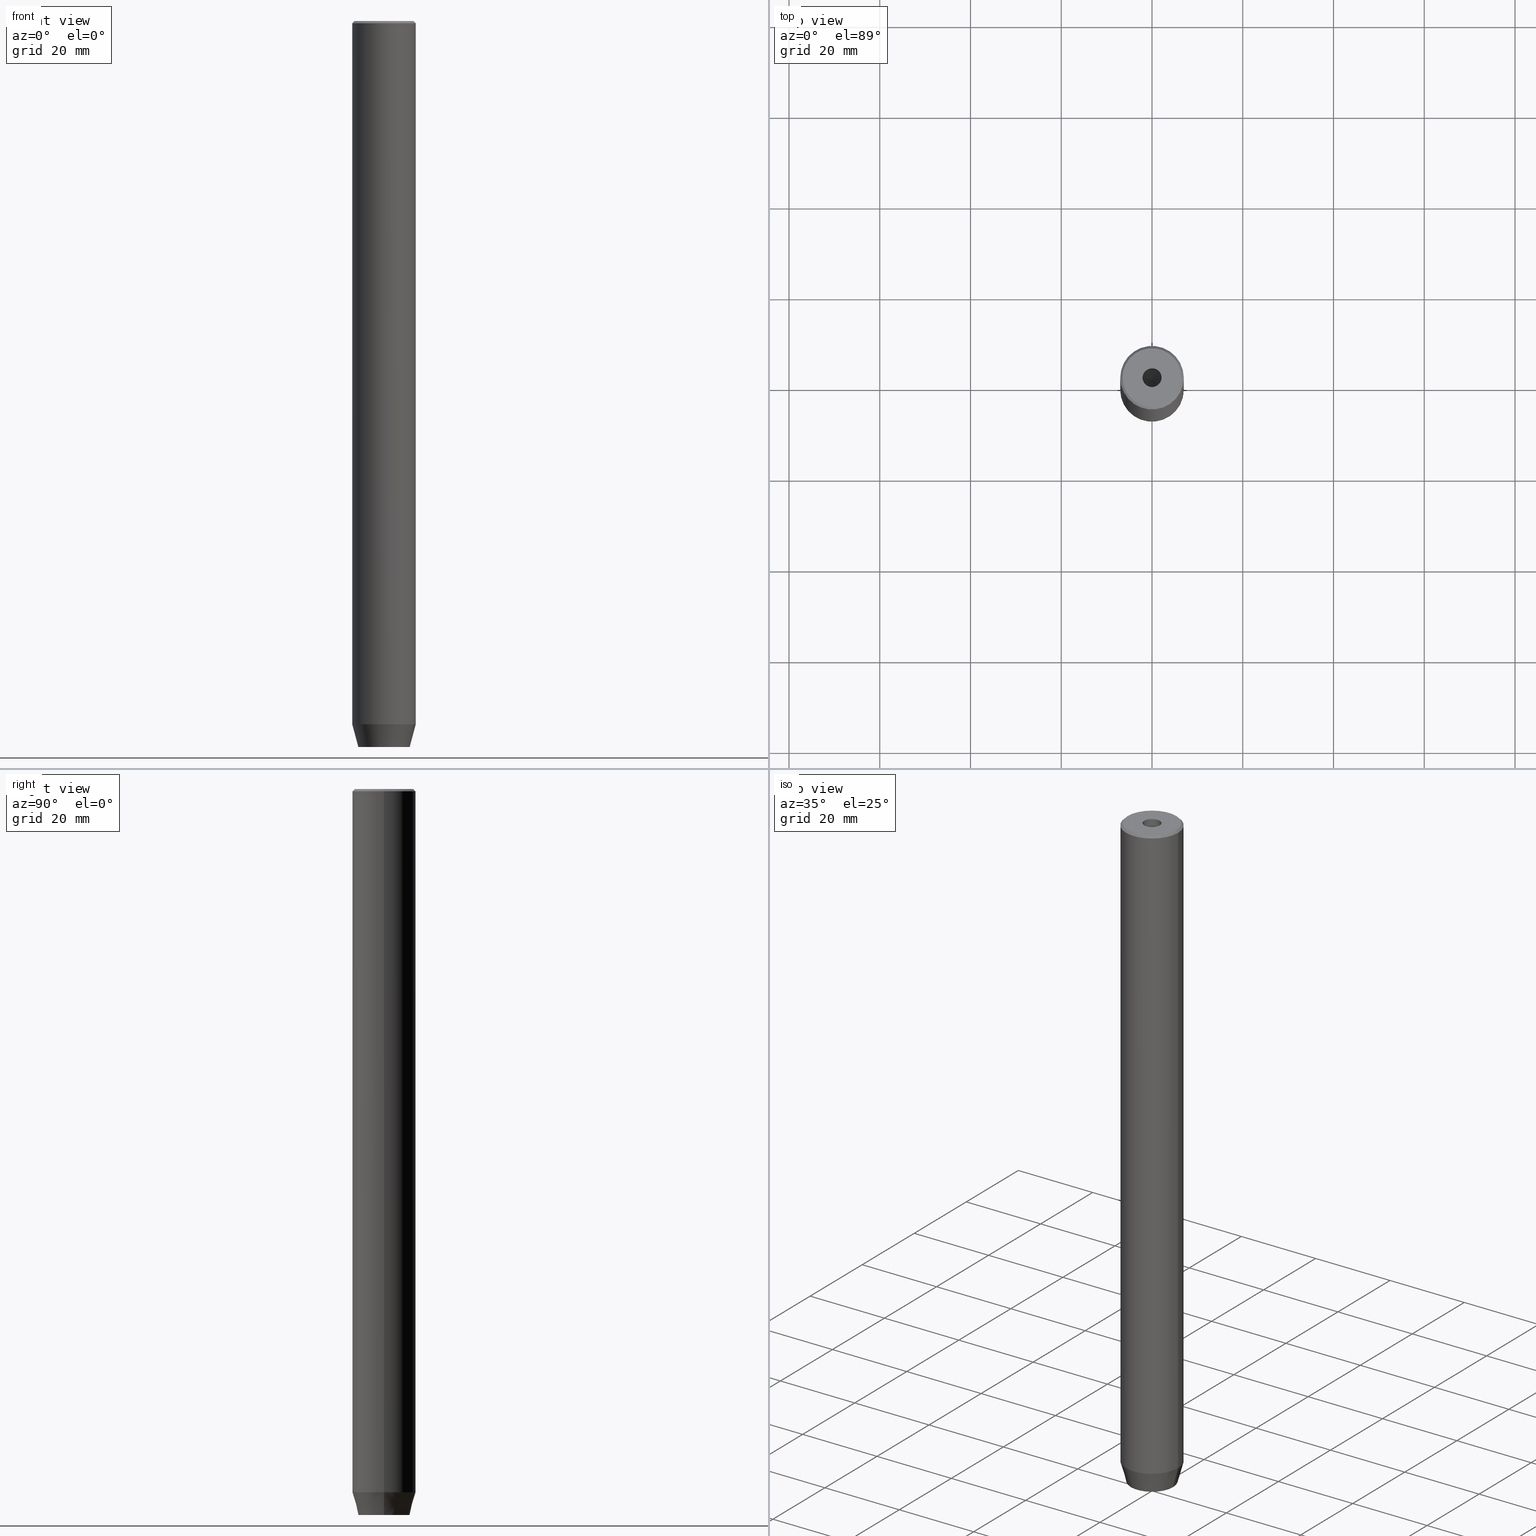
[diagram: canonical four-view strip — front | top / right | iso, engineering-drawing reading convention]
A machine part, canonical four-view strip (front | top / right | iso — engineering-drawing reading convention). The complete STEP part file that produces these views, byte-faithful:
ISO-10303-21;
HEADER;
FILE_DESCRIPTION (( 'STEP AP203' ),
    '1' );
FILE_NAME ('626a.STEP',
    '2024-01-02T20:41:17',
    ( '' ),
    ( '' ),
    'SwSTEP 2.0',
    'SolidWorks 2019',
    '' );
FILE_SCHEMA (( 'CONFIG_CONTROL_DESIGN' ));
ENDSEC;

DATA;
#1 = ADVANCED_FACE ( 'NONE', ( #154 ), #517, .F. ) ;
#2 = LINE ( 'NONE', #453, #165 ) ;
#3 = PERSON_AND_ORGANIZATION ( #474, #167 ) ;
#4 = VERTEX_POINT ( 'NONE', #475 ) ;
#5 = LINE ( 'NONE', #43, #86 ) ;
#6 = CLOSED_SHELL ( 'NONE', ( #383, #38, #160, #395, #504, #122, #405, #551, #339, #511, #423, #528, #535, #1, #142, #227, #458, #150, #30 ) ) ;
#7 = CIRCLE ( 'NONE', #49, 2.099999999999998757 ) ;
#8 = SECURITY_CLASSIFICATION_LEVEL ( 'unclassified' ) ;
#9 = ORIENTED_EDGE ( 'NONE', *, *, #446, .T. ) ;
#10 = DIRECTION ( 'NONE',  ( 1.000000000000000000, 0.000000000000000000, 0.000000000000000000 ) ) ;
#11 = LINE ( 'NONE', #149, #41 ) ;
#12 = LINE ( 'NONE', #291, #70 ) ;
#13 = COORDINATED_UNIVERSAL_TIME_OFFSET ( 1, 0, .AHEAD. ) ;
#14 = ORIENTED_EDGE ( 'NONE', *, *, #542, .T. ) ;
#15 = DIRECTION ( 'NONE',  ( -0.8660254037844387076, 0.4999999999999998890, 0.000000000000000000 ) ) ;
#16 = CARTESIAN_POINT ( 'NONE',  ( -2.099999999999997868, 2.571758278209438999E-16, 0.000000000000000000 ) ) ;
#17 = LOCAL_TIME ( 21, 41, 17.00000000000000000, #564 ) ;
#18 = FACE_OUTER_BOUND ( 'NONE', #515, .T. ) ;
#19 = DATE_AND_TIME ( #327, #342 ) ;
#20 = VERTEX_POINT ( 'NONE', #64 ) ;
#21 = ORIENTED_EDGE ( 'NONE', *, *, #129, .F. ) ;
#22 = LINE ( 'NONE', #382, #452 ) ;
#23 = EDGE_CURVE ( 'NONE', #570, #4, #261, .T. ) ;
#24 = EDGE_LOOP ( 'NONE', ( #155, #369, #341, #75 ) ) ;
#25 = LINE ( 'NONE', #419, #346 ) ;
#26 = CARTESIAN_POINT ( 'NONE',  ( 2.500000000000000000, 0.000000000000000000, -160.0000000000000000 ) ) ;
#27 = CARTESIAN_POINT ( 'NONE',  ( 1.249999999999999778, -2.165063509461096380, -157.2000000000000171 ) ) ;
#28 = AXIS2_PLACEMENT_3D ( 'NONE', #362, #89, #233 ) ;
#29 = CIRCLE ( 'NONE', #176, 7.000000000000000000 ) ;
#30 = ADVANCED_FACE ( 'NONE', ( #217 ), #350, .F. ) ;
#31 = VERTEX_POINT ( 'NONE', #437 ) ;
#32 = CARTESIAN_POINT ( 'NONE',  ( 0.000000000000000000, -2.886751345948128211, -157.2000000000000171 ) ) ;
#33 = CARTESIAN_POINT ( 'NONE',  ( 7.000000000000000000, 0.000000000000000000, 0.000000000000000000 ) ) ;
#34 = DIRECTION ( 'NONE',  ( 1.000000000000000000, 0.000000000000000000, 0.000000000000000000 ) ) ;
#35 = CIRCLE ( 'NONE', #546, 5.660254037844375752 ) ;
#36 = AXIS2_PLACEMENT_3D ( 'NONE', #407, #586, #185 ) ;
#37 = DIRECTION ( 'NONE',  ( -0.000000000000000000, -0.000000000000000000, 1.000000000000000000 ) ) ;
#38 = ADVANCED_FACE ( 'NONE', ( #260 ), #40, .F. ) ;
#39 = ORIENTED_EDGE ( 'NONE', *, *, #106, .T. ) ;
#40 = CONICAL_SURFACE ( 'NONE', #279, 2.099999999999996980, 1.029744258676652535 ) ;
#41 = VECTOR ( 'NONE', #282, 1000.000000000000000 ) ;
#42 = EDGE_CURVE ( 'NONE', #31, #258, #127, .T. ) ;
#43 = CARTESIAN_POINT ( 'NONE',  ( 2.500000000000000000, 1.443375672974064328, -157.2000000000000171 ) ) ;
#44 = DATE_AND_TIME ( #553, #287 ) ;
#45 = PERSON_AND_ORGANIZATION_ROLE ( 'design_supplier' ) ;
#46 = LINE ( 'NONE', #489, #318 ) ;
#47 = AXIS2_PLACEMENT_3D ( 'NONE', #394, #37, #353 ) ;
#48 = DIRECTION ( 'NONE',  ( -0.000000000000000000, -0.000000000000000000, 1.000000000000000000 ) ) ;
#49 = AXIS2_PLACEMENT_3D ( 'NONE', #582, #459, #10 ) ;
#50 = PERSON_AND_ORGANIZATION ( #474, #167 ) ;
#51 = EDGE_LOOP ( 'NONE', ( #364, #239, #65, #169 ) ) ;
#52 = DIRECTION ( 'NONE',  ( 1.000000000000000000, 0.000000000000000000, 0.000000000000000000 ) ) ;
#53 = EDGE_CURVE ( 'NONE', #256, #570, #224, .T. ) ;
#54 = PERSON_AND_ORGANIZATION_ROLE ( 'design_owner' ) ;
#55 = DIRECTION ( 'NONE',  ( 0.8660254037844385966, 0.5000000000000001110, 0.000000000000000000 ) ) ;
#56 = CARTESIAN_POINT ( 'NONE',  ( -1.084202172485504434E-16, 2.886751345948129543, -157.2000000000000171 ) ) ;
#57 = APPLICATION_CONTEXT ( 'configuration controlled 3d designs of mechanical parts and assemblies' ) ;
#58 = DIRECTION ( 'NONE',  ( -0.000000000000000000, -0.000000000000000000, 1.000000000000000000 ) ) ;
#59 = ORIENTED_EDGE ( 'NONE', *, *, #199, .F. ) ;
#60 = ORIENTED_EDGE ( 'NONE', *, *, #565, .F. ) ;
#61 = EDGE_CURVE ( 'NONE', #531, #194, #309, .T. ) ;
#62 = DIRECTION ( 'NONE',  ( -1.000000000000000000, 0.000000000000000000, -0.000000000000000000 ) ) ;
#63 = DIRECTION ( 'NONE',  ( -0.000000000000000000, -0.000000000000000000, 1.000000000000000000 ) ) ;
#64 = CARTESIAN_POINT ( 'NONE',  ( -2.500000000000000444, -1.443375672974064328, -157.2000000000000171 ) ) ;
#65 = ORIENTED_EDGE ( 'NONE', *, *, #257, .T. ) ;
#66 = FACE_OUTER_BOUND ( 'NONE', #338, .T. ) ;
#67 = ORIENTED_EDGE ( 'NONE', *, *, #61, .F. ) ;
#68 = ORIENTED_EDGE ( 'NONE', *, *, #294, .T. ) ;
#69 = EDGE_CURVE ( 'NONE', #258, #256, #213, .T. ) ;
#70 = VECTOR ( 'NONE', #463, 1000.000000000000114 ) ;
#71 = ORIENTED_EDGE ( 'NONE', *, *, #580, .T. ) ;
#72 = CIRCLE ( 'NONE', #255, 7.000000000000000000 ) ;
#73 = DIRECTION ( 'NONE',  ( 1.000000000000000000, 0.000000000000000000, 0.000000000000000000 ) ) ;
#74 = CARTESIAN_POINT ( 'NONE',  ( 2.500000000000000000, -1.443375672974064106, -157.2000000000000171 ) ) ;
#75 = ORIENTED_EDGE ( 'NONE', *, *, #168, .F. ) ;
#76 = DIRECTION ( 'NONE',  ( 0.8660254037844387076, -0.4999999999999998890, 0.000000000000000000 ) ) ;
#77 = ORIENTED_EDGE ( 'NONE', *, *, #61, .T. ) ;
#78 = EDGE_CURVE ( 'NONE', #4, #534, #356, .T. ) ;
#79 = CARTESIAN_POINT ( 'NONE',  ( 6.499999999999992006, 8.266365894244629403E-16, 0.000000000000000000 ) ) ;
#80 = CC_DESIGN_PERSON_AND_ORGANIZATION_ASSIGNMENT ( #500, #319, ( #527 ) ) ;
#81 = DIRECTION ( 'NONE',  ( -0.000000000000000000, -0.000000000000000000, 1.000000000000000000 ) ) ;
#82 = DIRECTION ( 'NONE',  ( 1.000000000000000000, 0.000000000000000000, 0.000000000000000000 ) ) ;
#83 =( LENGTH_UNIT ( ) NAMED_UNIT ( * ) SI_UNIT ( .MILLI., .METRE. ) );
#84 = EDGE_CURVE ( 'NONE', #293, #573, #218, .T. ) ;
#85 = VECTOR ( 'NONE', #485, 1000.000000000000000 ) ;
#86 = VECTOR ( 'NONE', #191, 1000.000000000000000 ) ;
#87 = CARTESIAN_POINT ( 'NONE',  ( -7.000000000000000000, 8.572527594031473190E-16, -0.5000000000000186517 ) ) ;
#88 = AXIS2_PLACEMENT_3D ( 'NONE', #246, #572, #253 ) ;
#89 = DIRECTION ( 'NONE',  ( 0.000000000000000000, 0.000000000000000000, -1.000000000000000000 ) ) ;
#90 = DIRECTION ( 'NONE',  ( -0.8571673007021113344, 1.049727191138617463E-16, 0.5150380749100558209 ) ) ;
#91 = CARTESIAN_POINT ( 'NONE',  ( 0.000000000000000000, 0.000000000000000000, -1.990051048614449116E-16 ) ) ;
#92 = PERSON_AND_ORGANIZATION ( #474, #167 ) ;
#93 = ORIENTED_EDGE ( 'NONE', *, *, #413, .F. ) ;
#94 = VERTEX_POINT ( 'NONE', #264 ) ;
#95 = DIRECTION ( 'NONE',  ( -0.000000000000000000, -0.000000000000000000, 1.000000000000000000 ) ) ;
#96 = PERSON_AND_ORGANIZATION ( #474, #167 ) ;
#97 = EDGE_LOOP ( 'NONE', ( #252, #158, #188, #409 ) ) ;
#98 = EDGE_LOOP ( 'NONE', ( #547, #428, #117, #39 ) ) ;
#99 = EDGE_CURVE ( 'NONE', #20, #179, #543, .T. ) ;
#100 = DIRECTION ( 'NONE',  ( -0.000000000000000000, -0.000000000000000000, 1.000000000000000000 ) ) ;
#101 = AXIS2_PLACEMENT_3D ( 'NONE', #91, #499, #131 ) ;
#102 = UNCERTAINTY_MEASURE_WITH_UNIT (LENGTH_MEASURE( 1.000000000000000082E-05 ), #83, 'distance_accuracy_value', 'NONE');
#103 = APPROVAL_ROLE ( '' ) ;
#104 = FACE_BOUND ( 'NONE', #166, .T. ) ;
#105 = FACE_OUTER_BOUND ( 'NONE', #247, .T. ) ;
#106 = EDGE_CURVE ( 'NONE', #286, #128, #498, .T. ) ;
#107 = ORIENTED_EDGE ( 'NONE', *, *, #334, .F. ) ;
#108 = CARTESIAN_POINT ( 'NONE',  ( 0.000000000000000000, 0.000000000000000000, 0.000000000000000000 ) ) ;
#109 = AXIS2_PLACEMENT_3D ( 'NONE', #328, #425, #62 ) ;
#110 = CIRCLE ( 'NONE', #189, 2.099999999999996980 ) ;
#111 = DIRECTION ( 'NONE',  ( 0.5000000000000000000, -0.8660254037844387076, 0.000000000000000000 ) ) ;
#112 = ORIENTED_EDGE ( 'NONE', *, *, #360, .F. ) ;
#113 = LINE ( 'NONE', #473, #393 ) ;
#114 = CYLINDRICAL_SURFACE ( 'NONE', #88, 7.000000000000000000 ) ;
#115 = ORIENTED_EDGE ( 'NONE', *, *, #439, .F. ) ;
#116 = CARTESIAN_POINT ( 'NONE',  ( 0.000000000000000000, 0.000000000000000000, -0.5000000000000186517 ) ) ;
#117 = ORIENTED_EDGE ( 'NONE', *, *, #334, .T. ) ;
#118 = DIRECTION ( 'NONE',  ( 0.000000000000000000, 0.000000000000000000, -1.000000000000000000 ) ) ;
#119 = EDGE_LOOP ( 'NONE', ( #330, #123, #115, #186 ) ) ;
#120 = CC_DESIGN_APPROVAL ( #259, ( #292 ) ) ;
#121 = FACE_OUTER_BOUND ( 'NONE', #119, .T. ) ;
#122 = ADVANCED_FACE ( 'NONE', ( #275, #414 ), #181, .T. ) ;
#123 = ORIENTED_EDGE ( 'NONE', *, *, #484, .F. ) ;
#124 = CONICAL_SURFACE ( 'NONE', #220, 6.499999999999992006, 0.7853981633974380649 ) ;
#125 = AXIS2_PLACEMENT_3D ( 'NONE', #340, #391, #82 ) ;
#126 = VECTOR ( 'NONE', #508, 1000.000000000000114 ) ;
#127 = LINE ( 'NONE', #396, #388 ) ;
#128 = VERTEX_POINT ( 'NONE', #365 ) ;
#129 = EDGE_CURVE ( 'NONE', #293, #355, #314, .T. ) ;
#130 = DIRECTION ( 'NONE',  ( 1.000000000000000000, 0.000000000000000000, 0.000000000000000000 ) ) ;
#131 = DIRECTION ( 'NONE',  ( 1.000000000000000000, 0.000000000000000000, 0.000000000000000000 ) ) ;
#132 = CARTESIAN_POINT ( 'NONE',  ( 1.250000000000000222, 2.165063509461096825, -160.0000000000000000 ) ) ;
#133 = APPLICATION_PROTOCOL_DEFINITION ( 'international standard', 'config_control_design', 1994, #57 ) ;
#134 = CC_DESIGN_APPROVAL ( #550, ( #527 ) ) ;
#135 = ORIENTED_EDGE ( 'NONE', *, *, #69, .F. ) ;
#136 = AXIS2_PLACEMENT_3D ( 'NONE', #27, #111, #212 ) ;
#137 = CIRCLE ( 'NONE', #510, 7.000000000000000000 ) ;
#138 = CARTESIAN_POINT ( 'NONE',  ( -7.000000000000000000, 8.572527594031473190E-16, 0.000000000000000000 ) ) ;
#139 = FACE_OUTER_BOUND ( 'NONE', #392, .T. ) ;
#140 = DIRECTION ( 'NONE',  ( 0.000000000000000000, 0.000000000000000000, 1.000000000000000000 ) ) ;
#141 = CARTESIAN_POINT ( 'NONE',  ( 0.000000000000000000, 0.000000000000000000, -154.9999999999999716 ) ) ;
#142 = ADVANCED_FACE ( 'NONE', ( #494 ), #267, .F. ) ;
#143 = ORIENTED_EDGE ( 'NONE', *, *, #297, .F. ) ;
#144 = DIRECTION ( 'NONE',  ( -0.5000000000000001110, 0.8660254037844385966, 0.000000000000000000 ) ) ;
#145 = PERSON_AND_ORGANIZATION ( #474, #167 ) ;
#146 = VECTOR ( 'NONE', #430, 1000.000000000000114 ) ;
#147 = DIRECTION ( 'NONE',  ( -0.8660254037844385966, 0.5000000000000001110, 0.000000000000000000 ) ) ;
#148 = AXIS2_PLACEMENT_3D ( 'NONE', #331, #58, #560 ) ;
#149 = CARTESIAN_POINT ( 'NONE',  ( -2.500000000000000444, 0.000000000000000000, -157.2000000000000171 ) ) ;
#150 = ADVANCED_FACE ( 'NONE', ( #139 ), #581, .F. ) ;
#151 = DIRECTION ( 'NONE',  ( 1.000000000000000000, 0.000000000000000000, 0.000000000000000000 ) ) ;
#152 = APPROVAL_STATUS ( 'not_yet_approved' ) ;
#153 = ORIENTED_EDGE ( 'NONE', *, *, #238, .T. ) ;
#154 = FACE_OUTER_BOUND ( 'NONE', #97, .T. ) ;
#155 = ORIENTED_EDGE ( 'NONE', *, *, #192, .F. ) ;
#156 = DIRECTION ( 'NONE',  ( 0.8571673007021113344, 0.000000000000000000, 0.5150380749100558209 ) ) ;
#157 = DATE_AND_TIME ( #333, #17 ) ;
#158 = ORIENTED_EDGE ( 'NONE', *, *, #574, .F. ) ;
#159 = ORIENTED_EDGE ( 'NONE', *, *, #294, .F. ) ;
#160 = ADVANCED_FACE ( 'NONE', ( #105 ), #403, .T. ) ;
#161 = DIRECTION ( 'NONE',  ( -0.000000000000000000, -0.000000000000000000, -1.000000000000000000 ) ) ;
#162 = CARTESIAN_POINT ( 'NONE',  ( 5.660254037844375752, 0.000000000000000000, -160.0000000000000000 ) ) ;
#163 = EDGE_LOOP ( 'NONE', ( #67, #237, #470, #223 ) ) ;
#164 = CC_DESIGN_APPROVAL ( #324, ( #434 ) ) ;
#165 = VECTOR ( 'NONE', #90, 1000.000000000000000 ) ;
#166 = EDGE_LOOP ( 'NONE', ( #404, #112 ) ) ;
#167 = ORGANIZATION ( 'NEUR�EN�', 'NEUR�EN�', '' ) ;
#168 = EDGE_CURVE ( 'NONE', #94, #355, #555, .T. ) ;
#169 = ORIENTED_EDGE ( 'NONE', *, *, #168, .T. ) ;
#170 = DIRECTION ( 'NONE',  ( 0.000000000000000000, -1.000000000000000000, 0.000000000000000000 ) ) ;
#171 = LINE ( 'NONE', #32, #472 ) ;
#172 = ORIENTED_EDGE ( 'NONE', *, *, #199, .T. ) ;
#173 = FACE_OUTER_BOUND ( 'NONE', #51, .T. ) ;
#174 = ORIENTED_EDGE ( 'NONE', *, *, #280, .T. ) ;
#175 = EDGE_CURVE ( 'NONE', #273, #478, #110, .T. ) ;
#176 = AXIS2_PLACEMENT_3D ( 'NONE', #455, #81, #541 ) ;
#177 = DIRECTION ( 'NONE',  ( -0.000000000000000000, -0.000000000000000000, 1.000000000000000000 ) ) ;
#178 = PLANE ( 'NONE',  #468 ) ;
#179 = VERTEX_POINT ( 'NONE', #336 ) ;
#180 = LINE ( 'NONE', #370, #544 ) ;
#181 = PLANE ( 'NONE',  #28 ) ;
#182 = COORDINATED_UNIVERSAL_TIME_OFFSET ( 1, 0, .AHEAD. ) ;
#183 = EDGE_LOOP ( 'NONE', ( #93, #60 ) ) ;
#184 = CARTESIAN_POINT ( 'NONE',  ( 2.500000000000000000, 1.443375672974064328, -160.0000000000000000 ) ) ;
#185 = DIRECTION ( 'NONE',  ( -0.000000000000000000, 0.000000000000000000, -1.000000000000000000 ) ) ;
#186 = ORIENTED_EDGE ( 'NONE', *, *, #99, .T. ) ;
#187 = LOCAL_TIME ( 21, 41, 17.00000000000000000, #182 ) ;
#188 = ORIENTED_EDGE ( 'NONE', *, *, #580, .F. ) ;
#189 = AXIS2_PLACEMENT_3D ( 'NONE', #332, #63, #151 ) ;
#190 = AXIS2_PLACEMENT_3D ( 'NONE', #313, #230, #585 ) ;
#191 = DIRECTION ( 'NONE',  ( -0.000000000000000000, -0.000000000000000000, -1.000000000000000000 ) ) ;
#192 = EDGE_CURVE ( 'NONE', #573, #94, #12, .T. ) ;
#193 = PERSON_AND_ORGANIZATION ( #474, #167 ) ;
#194 = VERTEX_POINT ( 'NONE', #248 ) ;
#195 = CALENDAR_DATE ( 2024, 2, 1 ) ;
#196 = ORIENTED_EDGE ( 'NONE', *, *, #389, .F. ) ;
#197 = LINE ( 'NONE', #26, #554 ) ;
#198 = ORIENTED_EDGE ( 'NONE', *, *, #280, .F. ) ;
#199 = EDGE_CURVE ( 'NONE', #534, #179, #207, .T. ) ;
#200 = VECTOR ( 'NONE', #241, 1000.000000000000000 ) ;
#201 = FACE_OUTER_BOUND ( 'NONE', #228, .T. ) ;
#202 = DIRECTION ( 'NONE',  ( -0.000000000000000000, -0.000000000000000000, 1.000000000000000000 ) ) ;
#203 = APPROVAL_PERSON_ORGANIZATION ( #3, #324, #456 ) ;
#204 = ORIENTED_EDGE ( 'NONE', *, *, #192, .T. ) ;
#205 = APPROVAL_ROLE ( '' ) ;
#206 = EDGE_LOOP ( 'NONE', ( #172, #384, #539, #349 ) ) ;
#207 = LINE ( 'NONE', #283, #146 ) ;
#208 = FACE_OUTER_BOUND ( 'NONE', #281, .T. ) ;
#209 = DATE_TIME_ROLE ( 'classification_date' ) ;
#210 = EDGE_CURVE ( 'NONE', #302, #4, #197, .T. ) ;
#211 = CONICAL_SURFACE ( 'NONE', #148, 7.000000000000000000, 0.2617993877991497964 ) ;
#212 = DIRECTION ( 'NONE',  ( 0.8660254037844385966, 0.4999999999999999445, 0.000000000000000000 ) ) ;
#213 = LINE ( 'NONE', #571, #566 ) ;
#214 = LINE ( 'NONE', #33, #85 ) ;
#215 = CC_DESIGN_PERSON_AND_ORGANIZATION_ASSIGNMENT ( #50, #322, ( #434 ) ) ;
#216 = VECTOR ( 'NONE', #265, 1000.000000000000000 ) ;
#217 = FACE_OUTER_BOUND ( 'NONE', #98, .T. ) ;
#218 = CIRCLE ( 'NONE', #125, 6.499999999999992006 ) ;
#219 = AXIS2_PLACEMENT_3D ( 'NONE', #406, #536, #130 ) ;
#220 = AXIS2_PLACEMENT_3D ( 'NONE', #337, #118, #300 ) ;
#221 = DIRECTION ( 'NONE',  ( -0.000000000000000000, -0.000000000000000000, 1.000000000000000000 ) ) ;
#222 = CARTESIAN_POINT ( 'NONE',  ( 0.000000000000000000, 0.000000000000000000, -160.0000000000000000 ) ) ;
#223 = ORIENTED_EDGE ( 'NONE', *, *, #354, .F. ) ;
#224 = LINE ( 'NONE', #486, #411 ) ;
#225 = DIRECTION ( 'NONE',  ( -0.000000000000000000, -0.000000000000000000, 1.000000000000000000 ) ) ;
#226 = CARTESIAN_POINT ( 'NONE',  ( -1.249999999999999556, -2.165063509461096825, -157.2000000000000171 ) ) ;
#227 = ADVANCED_FACE ( 'NONE', ( #208 ), #569, .F. ) ;
#228 = EDGE_LOOP ( 'NONE', ( #401, #77, #159, #196 ) ) ;
#229 = CIRCLE ( 'NONE', #556, 5.660254037844375752 ) ;
#230 = DIRECTION ( 'NONE',  ( -0.000000000000000000, -0.000000000000000000, 1.000000000000000000 ) ) ;
#231 = CARTESIAN_POINT ( 'NONE',  ( -6.499999999999992006, 0.000000000000000000, 0.000000000000000000 ) ) ;
#232 = ORIENTED_EDGE ( 'NONE', *, *, #53, .T. ) ;
#233 = DIRECTION ( 'NONE',  ( -1.000000000000000000, 0.000000000000000000, -0.000000000000000000 ) ) ;
#234 = EDGE_CURVE ( 'NONE', #573, #293, #378, .T. ) ;
#235 = ORIENTED_EDGE ( 'NONE', *, *, #316, .T. ) ;
#236 = CYLINDRICAL_SURFACE ( 'NONE', #568, 2.099999999999997868 ) ;
#237 = ORIENTED_EDGE ( 'NONE', *, *, #565, .T. ) ;
#238 = EDGE_CURVE ( 'NONE', #258, #557, #512, .T. ) ;
#239 = ORIENTED_EDGE ( 'NONE', *, *, #354, .T. ) ;
#240 = PLANE ( 'NONE',  #109 ) ;
#241 = DIRECTION ( 'NONE',  ( -0.000000000000000000, -0.000000000000000000, -1.000000000000000000 ) ) ;
#242 = ORIENTED_EDGE ( 'NONE', *, *, #53, .F. ) ;
#243 = APPROVAL_PERSON_ORGANIZATION ( #525, #259, #205 ) ;
#244 = FACE_OUTER_BOUND ( 'NONE', #587, .T. ) ;
#245 = DIRECTION ( 'NONE',  ( 0.000000000000000000, 0.000000000000000000, -1.000000000000000000 ) ) ;
#246 = CARTESIAN_POINT ( 'NONE',  ( 0.000000000000000000, 0.000000000000000000, 0.000000000000000000 ) ) ;
#247 = EDGE_LOOP ( 'NONE', ( #296, #204, #567, #21 ) ) ;
#248 = CARTESIAN_POINT ( 'NONE',  ( -7.000000000000000000, 8.572527594031473190E-16, -154.9999999999999716 ) ) ;
#249 = ORIENTED_EDGE ( 'NONE', *, *, #69, .T. ) ;
#250 = EDGE_CURVE ( 'NONE', #478, #128, #420, .T. ) ;
#251 = CARTESIAN_POINT ( 'NONE',  ( 0.000000000000000000, 0.000000000000000000, -15.00000000000000000 ) ) ;
#252 = ORIENTED_EDGE ( 'NONE', *, *, #78, .T. ) ;
#253 = DIRECTION ( 'NONE',  ( 1.000000000000000000, 0.000000000000000000, 0.000000000000000000 ) ) ;
#254 = AXIS2_PLACEMENT_3D ( 'NONE', #443, #303, #299 ) ;
#255 = AXIS2_PLACEMENT_3D ( 'NONE', #141, #95, #277 ) ;
#256 = VERTEX_POINT ( 'NONE', #481 ) ;
#257 = EDGE_CURVE ( 'NONE', #584, #94, #214, .T. ) ;
#258 = VERTEX_POINT ( 'NONE', #490 ) ;
#259 = APPROVAL ( #152, 'NEUR�EN�' ) ;
#260 = FACE_OUTER_BOUND ( 'NONE', #278, .T. ) ;
#261 = LINE ( 'NONE', #447, #421 ) ;
#262 = CARTESIAN_POINT ( 'NONE',  ( 2.099999999999996980, 0.000000000000000000, -15.00000000000000000 ) ) ;
#263 = CC_DESIGN_PERSON_AND_ORGANIZATION_ASSIGNMENT ( #145, #54, ( #276 ) ) ;
#264 = CARTESIAN_POINT ( 'NONE',  ( 7.000000000000000000, 0.000000000000000000, -0.5000000000000186517 ) ) ;
#265 = DIRECTION ( 'NONE',  ( 0.8660254037844385966, -0.5000000000000001110, 0.000000000000000000 ) ) ;
#266 = LINE ( 'NONE', #138, #519 ) ;
#267 = PLANE ( 'NONE',  #36 ) ;
#268 = APPROVAL_DATE_TIME ( #495, #324 ) ;
#269 = AXIS2_PLACEMENT_3D ( 'NONE', #464, #524, #147 ) ;
#270 = DIRECTION ( 'NONE',  ( -0.7071067811865402453, 0.000000000000000000, -0.7071067811865549002 ) ) ;
#271 = ORIENTED_EDGE ( 'NONE', *, *, #210, .T. ) ;
#272 = CC_DESIGN_DATE_AND_TIME_ASSIGNMENT ( #363, #507, ( #434 ) ) ;
#273 = VERTEX_POINT ( 'NONE', #262 ) ;
#274 = CARTESIAN_POINT ( 'NONE',  ( -6.499999999999992006, 0.000000000000000000, 0.000000000000000000 ) ) ;
#275 = FACE_BOUND ( 'NONE', #359, .T. ) ;
#276 = PRODUCT ( '626a', '626a', '', ( #451 ) ) ;
#277 = DIRECTION ( 'NONE',  ( 1.000000000000000000, 0.000000000000000000, 0.000000000000000000 ) ) ;
#278 = EDGE_LOOP ( 'NONE', ( #381, #174, #235 ) ) ;
#279 = AXIS2_PLACEMENT_3D ( 'NONE', #347, #221, #73 ) ;
#280 = EDGE_CURVE ( 'NONE', #372, #478, #2, .T. ) ;
#281 = EDGE_LOOP ( 'NONE', ( #14, #143, #135, #153 ) ) ;
#282 = DIRECTION ( 'NONE',  ( 0.000000000000000000, 1.000000000000000000, 0.000000000000000000 ) ) ;
#283 = CARTESIAN_POINT ( 'NONE',  ( -1.249999999999999556, -2.165063509461096825, -160.0000000000000000 ) ) ;
#284 = ORIENTED_EDGE ( 'NONE', *, *, #234, .T. ) ;
#285 = DIRECTION ( 'NONE',  ( -0.000000000000000000, -0.000000000000000000, -1.000000000000000000 ) ) ;
#286 = VERTEX_POINT ( 'NONE', #308 ) ;
#287 = LOCAL_TIME ( 21, 41, 17.00000000000000000, #13 ) ;
#288 = VECTOR ( 'NONE', #506, 1000.000000000000000 ) ;
#289 = PLANE ( 'NONE',  #298 ) ;
#290 = CONICAL_SURFACE ( 'NONE', #190, 7.000000000000000000, 0.2617993877991497964 ) ;
#291 = CARTESIAN_POINT ( 'NONE',  ( 6.499999999999992006, 7.960204194457785616E-16, 0.000000000000000000 ) ) ;
#292 = SECURITY_CLASSIFICATION ( '', '', #8 ) ;
#293 = VERTEX_POINT ( 'NONE', #274 ) ;
#294 = EDGE_CURVE ( 'NONE', #584, #194, #29, .T. ) ;
#295 = LINE ( 'NONE', #513, #496 ) ;
#296 = ORIENTED_EDGE ( 'NONE', *, *, #234, .F. ) ;
#297 = EDGE_CURVE ( 'NONE', #256, #302, #5, .T. ) ;
#298 = AXIS2_PLACEMENT_3D ( 'NONE', #429, #144, #562 ) ;
#299 = DIRECTION ( 'NONE',  ( 1.000000000000000000, 0.000000000000000000, 0.000000000000000000 ) ) ;
#300 = DIRECTION ( 'NONE',  ( -1.000000000000000000, 0.000000000000000000, 0.000000000000000000 ) ) ;
#301 = CARTESIAN_POINT ( 'NONE',  ( -2.500000000000000444, 0.000000000000000000, -157.2000000000000171 ) ) ;
#302 = VERTEX_POINT ( 'NONE', #184 ) ;
#303 = DIRECTION ( 'NONE',  ( -0.000000000000000000, -0.000000000000000000, 1.000000000000000000 ) ) ;
#304 =( NAMED_UNIT ( * ) PLANE_ANGLE_UNIT ( ) SI_UNIT ( $, .RADIAN. ) );
#305 = ORIENTED_EDGE ( 'NONE', *, *, #78, .F. ) ;
#306 = VECTOR ( 'NONE', #491, 999.9999999999998863 ) ;
#307 = EDGE_CURVE ( 'NONE', #355, #94, #137, .T. ) ;
#308 = CARTESIAN_POINT ( 'NONE',  ( 2.099999999999998757, 0.000000000000000000, -1.990051048614449116E-16 ) ) ;
#309 = LINE ( 'NONE', #352, #469 ) ;
#310 = LINE ( 'NONE', #492, #460 ) ;
#311 = EDGE_LOOP ( 'NONE', ( #561, #435, #357, #107 ) ) ;
#312 = CC_DESIGN_DATE_AND_TIME_ASSIGNMENT ( #19, #209, ( #292 ) ) ;
#313 = CARTESIAN_POINT ( 'NONE',  ( 0.000000000000000000, 0.000000000000000000, -154.9999999999999716 ) ) ;
#314 = LINE ( 'NONE', #231, #433 ) ;
#315 = CARTESIAN_POINT ( 'NONE',  ( 7.000000000000000000, 0.000000000000000000, -154.9999999999999716 ) ) ;
#316 = EDGE_CURVE ( 'NONE', #478, #273, #471, .T. ) ;
#317 = APPROVAL_DATE_TIME ( #44, #550 ) ;
#318 = VECTOR ( 'NONE', #348, 1000.000000000000000 ) ;
#319 = PERSON_AND_ORGANIZATION_ROLE ( 'creator' ) ;
#320 = ORIENTED_EDGE ( 'NONE', *, *, #446, .F. ) ;
#321 = EDGE_LOOP ( 'NONE', ( #432, #284 ) ) ;
#322 = PERSON_AND_ORGANIZATION_ROLE ( 'creator' ) ;
#323 = AXIS2_PLACEMENT_3D ( 'NONE', #251, #418, #385 ) ;
#324 = APPROVAL ( #366, 'NEUR�EN�' ) ;
#325 = DIRECTION ( 'NONE',  ( 1.000000000000000000, 0.000000000000000000, 0.000000000000000000 ) ) ;
#326 = DIRECTION ( 'NONE',  ( 1.000000000000000000, 0.000000000000000000, 0.000000000000000000 ) ) ;
#327 = CALENDAR_DATE ( 2024, 2, 1 ) ;
#328 = CARTESIAN_POINT ( 'NONE',  ( 0.000000000000000000, 0.000000000000000000, -157.2000000000000171 ) ) ;
#329 = CARTESIAN_POINT ( 'NONE',  ( 0.000000000000000000, 0.000000000000000000, 0.000000000000000000 ) ) ;
#330 = ORIENTED_EDGE ( 'NONE', *, *, #523, .T. ) ;
#331 = CARTESIAN_POINT ( 'NONE',  ( 0.000000000000000000, 0.000000000000000000, -154.9999999999999716 ) ) ;
#332 = CARTESIAN_POINT ( 'NONE',  ( 0.000000000000000000, 0.000000000000000000, -15.00000000000000000 ) ) ;
#333 = CALENDAR_DATE ( 2024, 2, 1 ) ;
#334 = EDGE_CURVE ( 'NONE', #273, #286, #180, .T. ) ;
#335 = ORIENTED_EDGE ( 'NONE', *, *, #523, .F. ) ;
#336 = CARTESIAN_POINT ( 'NONE',  ( -2.500000000000000444, -1.443375672974064328, -160.0000000000000000 ) ) ;
#337 = CARTESIAN_POINT ( 'NONE',  ( 0.000000000000000000, 0.000000000000000000, 0.000000000000000000 ) ) ;
#338 = EDGE_LOOP ( 'NONE', ( #9, #559, #518, #457 ) ) ;
#339 = ADVANCED_FACE ( 'NONE', ( #548 ), #290, .T. ) ;
#340 = CARTESIAN_POINT ( 'NONE',  ( 0.000000000000000000, 0.000000000000000000, 0.000000000000000000 ) ) ;
#341 = ORIENTED_EDGE ( 'NONE', *, *, #129, .T. ) ;
#342 = LOCAL_TIME ( 21, 41, 17.00000000000000000, #549 ) ;
#343 = CC_DESIGN_PERSON_AND_ORGANIZATION_ASSIGNMENT ( #92, #45, ( #527 ) ) ;
#344 = VECTOR ( 'NONE', #380, 1000.000000000000000 ) ;
#345 = SHAPE_DEFINITION_REPRESENTATION ( #476, #442 ) ;
#346 = VECTOR ( 'NONE', #15, 1000.000000000000114 ) ;
#347 = CARTESIAN_POINT ( 'NONE',  ( 0.000000000000000000, 0.000000000000000000, -15.00000000000000000 ) ) ;
#348 = DIRECTION ( 'NONE',  ( 0.000000000000000000, 1.000000000000000000, 0.000000000000000000 ) ) ;
#349 = ORIENTED_EDGE ( 'NONE', *, *, #574, .T. ) ;
#350 = CYLINDRICAL_SURFACE ( 'NONE', #254, 2.099999999999997868 ) ;
#351 = CARTESIAN_POINT ( 'NONE',  ( 7.000000000000000000, 0.000000000000000000, -154.9999999999999716 ) ) ;
#352 = CARTESIAN_POINT ( 'NONE',  ( -7.000000000000000000, 8.572527594031473190E-16, -154.9999999999999716 ) ) ;
#353 = DIRECTION ( 'NONE',  ( 1.000000000000000000, 0.000000000000000000, 0.000000000000000000 ) ) ;
#354 = EDGE_CURVE ( 'NONE', #194, #584, #72, .T. ) ;
#355 = VERTEX_POINT ( 'NONE', #87 ) ;
#356 = LINE ( 'NONE', #532, #306 ) ;
#357 = ORIENTED_EDGE ( 'NONE', *, *, #360, .T. ) ;
#358 = CARTESIAN_POINT ( 'NONE',  ( -2.500000000000000444, -1.443375672974064328, -157.2000000000000171 ) ) ;
#359 = EDGE_LOOP ( 'NONE', ( #320, #335, #59, #305, #480, #416 ) ) ;
#360 = EDGE_CURVE ( 'NONE', #128, #286, #7, .T. ) ;
#361 = DIRECTION ( 'NONE',  ( 1.000000000000000000, 0.000000000000000000, 0.000000000000000000 ) ) ;
#362 = CARTESIAN_POINT ( 'NONE',  ( 0.000000000000000000, 5.660254037844375752, -160.0000000000000000 ) ) ;
#363 = DATE_AND_TIME ( #454, #187 ) ;
#364 = ORIENTED_EDGE ( 'NONE', *, *, #375, .F. ) ;
#365 = CARTESIAN_POINT ( 'NONE',  ( -2.099999999999998757, 2.571758278209439985E-16, -1.990051048614449116E-16 ) ) ;
#366 = APPROVAL_STATUS ( 'not_yet_approved' ) ;
#367 = LOCAL_TIME ( 21, 41, 17.00000000000000000, #545 ) ;
#368 = AXIS2_PLACEMENT_3D ( 'NONE', #376, #245, #563 ) ;
#369 = ORIENTED_EDGE ( 'NONE', *, *, #84, .F. ) ;
#370 = CARTESIAN_POINT ( 'NONE',  ( 2.099999999999997868, 0.000000000000000000, 0.000000000000000000 ) ) ;
#371 = PERSON_AND_ORGANIZATION_ROLE ( 'classification_officer' ) ;
#372 = VERTEX_POINT ( 'NONE', #493 ) ;
#373 = MANIFOLD_SOLID_BREP ( 'Vrt�k z�vitn�ku pro M5 z�vit1', #6 ) ;
#374 = FACE_OUTER_BOUND ( 'NONE', #311, .T. ) ;
#375 = EDGE_CURVE ( 'NONE', #194, #355, #266, .T. ) ;
#376 = CARTESIAN_POINT ( 'NONE',  ( 0.000000000000000000, 0.000000000000000000, 0.000000000000000000 ) ) ;
#377 = APPLICATION_PROTOCOL_DEFINITION ( 'international standard', 'config_control_design', 1994, #426 ) ;
#378 = CIRCLE ( 'NONE', #450, 6.499999999999992006 ) ;
#379 = PRODUCT_RELATED_PRODUCT_CATEGORY ( 'detail', '', ( #276 ) ) ;
#380 = DIRECTION ( 'NONE',  ( -0.000000000000000000, -0.000000000000000000, 1.000000000000000000 ) ) ;
#381 = ORIENTED_EDGE ( 'NONE', *, *, #479, .F. ) ;
#382 = CARTESIAN_POINT ( 'NONE',  ( 2.099999999999996980, 0.000000000000000000, -15.00000000000000000 ) ) ;
#383 = ADVANCED_FACE ( 'NONE', ( #374 ), #236, .F. ) ;
#384 = ORIENTED_EDGE ( 'NONE', *, *, #99, .F. ) ;
#385 = DIRECTION ( 'NONE',  ( 1.000000000000000000, 0.000000000000000000, 0.000000000000000000 ) ) ;
#386 = VERTEX_POINT ( 'NONE', #449 ) ;
#387 = APPROVAL_PERSON_ORGANIZATION ( #96, #550, #103 ) ;
#388 = VECTOR ( 'NONE', #529, 1000.000000000000000 ) ;
#389 = EDGE_CURVE ( 'NONE', #522, #584, #537, .T. ) ;
#390 = EDGE_LOOP ( 'NONE', ( #271, #412, #242, #526 ) ) ;
#391 = DIRECTION ( 'NONE',  ( -0.000000000000000000, -0.000000000000000000, 1.000000000000000000 ) ) ;
#392 = EDGE_LOOP ( 'NONE', ( #198, #461, #577 ) ) ;
#393 = VECTOR ( 'NONE', #55, 1000.000000000000000 ) ;
#394 = CARTESIAN_POINT ( 'NONE',  ( 0.000000000000000000, 0.000000000000000000, 0.000000000000000000 ) ) ;
#395 = ADVANCED_FACE ( 'NONE', ( #201 ), #211, .T. ) ;
#396 = CARTESIAN_POINT ( 'NONE',  ( -1.250000000000000444, 2.165063509461097269, -157.2000000000000171 ) ) ;
#397 = CARTESIAN_POINT ( 'NONE',  ( -5.660254037844375752, 7.752169791919234826E-16, -160.0000000000000000 ) ) ;
#398 = ORIENTED_EDGE ( 'NONE', *, *, #257, .F. ) ;
#399 = DIRECTION ( 'NONE',  ( -0.2588190451025210725, 3.169619151431769255E-17, 0.9659258262890680902 ) ) ;
#400 = CARTESIAN_POINT ( 'NONE',  ( 0.000000000000000000, 2.886751345948129099, -160.0000000000000000 ) ) ;
#401 = ORIENTED_EDGE ( 'NONE', *, *, #413, .T. ) ;
#402 = CARTESIAN_POINT ( 'NONE',  ( 0.000000000000000000, 0.000000000000000000, 0.000000000000000000 ) ) ;
#403 = CONICAL_SURFACE ( 'NONE', #368, 6.499999999999992006, 0.7853981633974380649 ) ;
#404 = ORIENTED_EDGE ( 'NONE', *, *, #106, .F. ) ;
#405 = ADVANCED_FACE ( 'NONE', ( #104, #520 ), #516, .T. ) ;
#406 = CARTESIAN_POINT ( 'NONE',  ( 0.000000000000000000, 0.000000000000000000, -15.00000000000000000 ) ) ;
#407 = CARTESIAN_POINT ( 'NONE',  ( 2.500000000000000000, 0.000000000000000000, -157.2000000000000171 ) ) ;
#408 = DIRECTION ( 'NONE',  ( 1.000000000000000000, 0.000000000000000000, 0.000000000000000000 ) ) ;
#409 = ORIENTED_EDGE ( 'NONE', *, *, #23, .T. ) ;
#410 = AXIS2_PLACEMENT_3D ( 'NONE', #502, #140, #408 ) ;
#411 = VECTOR ( 'NONE', #170, 1000.000000000000000 ) ;
#412 = ORIENTED_EDGE ( 'NONE', *, *, #23, .F. ) ;
#413 = EDGE_CURVE ( 'NONE', #522, #531, #229, .T. ) ;
#414 = FACE_OUTER_BOUND ( 'NONE', #183, .T. ) ;
#415 =( NAMED_UNIT ( * ) SI_UNIT ( $, .STERADIAN. ) SOLID_ANGLE_UNIT ( ) );
#416 = ORIENTED_EDGE ( 'NONE', *, *, #542, .F. ) ;
#417 = DIRECTION ( 'NONE',  ( 0.000000000000000000, -0.000000000000000000, 1.000000000000000000 ) ) ;
#418 = DIRECTION ( 'NONE',  ( -0.000000000000000000, -0.000000000000000000, 1.000000000000000000 ) ) ;
#419 = CARTESIAN_POINT ( 'NONE',  ( -1.249999999999999556, -2.165063509461096825, -157.2000000000000171 ) ) ;
#420 = LINE ( 'NONE', #16, #344 ) ;
#421 = VECTOR ( 'NONE', #161, 1000.000000000000000 ) ;
#422 = VERTEX_POINT ( 'NONE', #558 ) ;
#423 = ADVANCED_FACE ( 'NONE', ( #66 ), #289, .F. ) ;
#424 =( GEOMETRIC_REPRESENTATION_CONTEXT ( 3 ) GLOBAL_UNCERTAINTY_ASSIGNED_CONTEXT ( ( #102 ) ) GLOBAL_UNIT_ASSIGNED_CONTEXT ( ( #83, #304, #415 ) ) REPRESENTATION_CONTEXT ( 'NONE', 'WORKASPACE' ) );
#425 = DIRECTION ( 'NONE',  ( 0.000000000000000000, 0.000000000000000000, -1.000000000000000000 ) ) ;
#426 = APPLICATION_CONTEXT ( 'configuration controlled 3d designs of mechanical parts and assemblies' ) ;
#427 = CARTESIAN_POINT ( 'NONE',  ( 0.000000000000000000, 0.000000000000000000, -160.0000000000000000 ) ) ;
#428 = ORIENTED_EDGE ( 'NONE', *, *, #175, .F. ) ;
#429 = CARTESIAN_POINT ( 'NONE',  ( -1.250000000000000444, 2.165063509461097269, -157.2000000000000171 ) ) ;
#430 = DIRECTION ( 'NONE',  ( -0.8660254037844387076, 0.4999999999999998890, 0.000000000000000000 ) ) ;
#431 = FACE_OUTER_BOUND ( 'NONE', #24, .T. ) ;
#432 = ORIENTED_EDGE ( 'NONE', *, *, #84, .T. ) ;
#433 = VECTOR ( 'NONE', #270, 1000.000000000000114 ) ;
#434 = PRODUCT_DEFINITION ( 'NEZN�M�', '', #527, #462 ) ;
#435 = ORIENTED_EDGE ( 'NONE', *, *, #250, .T. ) ;
#436 = ORIENTED_EDGE ( 'NONE', *, *, #439, .T. ) ;
#437 = CARTESIAN_POINT ( 'NONE',  ( -2.500000000000000444, 1.443375672974064772, -157.2000000000000171 ) ) ;
#438 = CYLINDRICAL_SURFACE ( 'NONE', #47, 7.000000000000000000 ) ;
#439 = EDGE_CURVE ( 'NONE', #20, #31, #11, .T. ) ;
#440 = AXIS2_PLACEMENT_3D ( 'NONE', #116, #477, #521 ) ;
#441 = LINE ( 'NONE', #132, #216 ) ;
#442 = ADVANCED_BREP_SHAPE_REPRESENTATION ( '626a', ( #373, #410 ), #424 ) ;
#443 = CARTESIAN_POINT ( 'NONE',  ( 0.000000000000000000, 0.000000000000000000, 0.000000000000000000 ) ) ;
#444 = CARTESIAN_POINT ( 'NONE',  ( 0.000000000000000000, -2.886751345948128211, -160.0000000000000000 ) ) ;
#445 = DIRECTION ( 'NONE',  ( 1.000000000000000000, 0.000000000000000000, 0.000000000000000000 ) ) ;
#446 = EDGE_CURVE ( 'NONE', #422, #557, #113, .T. ) ;
#447 = CARTESIAN_POINT ( 'NONE',  ( 2.500000000000000000, -1.443375672974064106, -157.2000000000000171 ) ) ;
#448 = PLANE ( 'NONE',  #540 ) ;
#449 = CARTESIAN_POINT ( 'NONE',  ( 0.000000000000000000, -2.886751345948128211, -157.2000000000000171 ) ) ;
#450 = AXIS2_PLACEMENT_3D ( 'NONE', #329, #202, #326 ) ;
#451 = MECHANICAL_CONTEXT ( 'NONE', #57, 'mechanical' ) ;
#452 = VECTOR ( 'NONE', #156, 1000.000000000000000 ) ;
#453 = CARTESIAN_POINT ( 'NONE',  ( -2.099999999999996980, 2.571758278209438013E-16, -15.00000000000000000 ) ) ;
#454 = CALENDAR_DATE ( 2024, 2, 1 ) ;
#455 = CARTESIAN_POINT ( 'NONE',  ( 0.000000000000000000, 0.000000000000000000, -154.9999999999999716 ) ) ;
#456 = APPROVAL_ROLE ( '' ) ;
#457 = ORIENTED_EDGE ( 'NONE', *, *, #484, .T. ) ;
#458 = ADVANCED_FACE ( 'NONE', ( #244 ), #240, .T. ) ;
#459 = DIRECTION ( 'NONE',  ( -0.000000000000000000, -0.000000000000000000, 1.000000000000000000 ) ) ;
#460 = VECTOR ( 'NONE', #575, 999.9999999999998863 ) ;
#461 = ORIENTED_EDGE ( 'NONE', *, *, #479, .T. ) ;
#462 = DESIGN_CONTEXT ( 'detailed design', #426, 'design' ) ;
#463 = DIRECTION ( 'NONE',  ( 0.7071067811865402453, 8.659560562354845344E-17, -0.7071067811865549002 ) ) ;
#464 = CARTESIAN_POINT ( 'NONE',  ( 1.250000000000000222, 2.165063509461096825, -157.2000000000000171 ) ) ;
#465 = EDGE_CURVE ( 'NONE', #386, #20, #25, .T. ) ;
#466 = ORIENTED_EDGE ( 'NONE', *, *, #42, .T. ) ;
#467 = CARTESIAN_POINT ( 'NONE',  ( -2.099999999999996980, 2.571758278209438013E-16, -15.00000000000000000 ) ) ;
#468 = AXIS2_PLACEMENT_3D ( 'NONE', #226, #483, #76 ) ;
#469 = VECTOR ( 'NONE', #399, 1000.000000000000114 ) ;
#470 = ORIENTED_EDGE ( 'NONE', *, *, #389, .T. ) ;
#471 = CIRCLE ( 'NONE', #219, 2.099999999999996980 ) ;
#472 = VECTOR ( 'NONE', #579, 1000.000000000000000 ) ;
#473 = CARTESIAN_POINT ( 'NONE',  ( -1.250000000000000444, 2.165063509461097269, -160.0000000000000000 ) ) ;
#474 = PERSON ( 'NEUR�EN�', 'NEUR�EN�', 'NEUR�EN�', ('NEUR�EN�'), ('NEUR�EN�'), ('NEUR�EN�') ) ;
#475 = CARTESIAN_POINT ( 'NONE',  ( 2.500000000000000000, -1.443375672974064106, -160.0000000000000000 ) ) ;
#476 = PRODUCT_DEFINITION_SHAPE ( 'NONE', 'NONE',  #434 ) ;
#477 = DIRECTION ( 'NONE',  ( 0.000000000000000000, 0.000000000000000000, -1.000000000000000000 ) ) ;
#478 = VERTEX_POINT ( 'NONE', #467 ) ;
#479 = EDGE_CURVE ( 'NONE', #372, #273, #22, .T. ) ;
#480 = ORIENTED_EDGE ( 'NONE', *, *, #210, .F. ) ;
#481 = CARTESIAN_POINT ( 'NONE',  ( 2.500000000000000000, 1.443375672974064328, -157.2000000000000171 ) ) ;
#482 = DIRECTION ( 'NONE',  ( -0.000000000000000000, -0.000000000000000000, 1.000000000000000000 ) ) ;
#483 = DIRECTION ( 'NONE',  ( -0.4999999999999998890, -0.8660254037844387076, 0.000000000000000000 ) ) ;
#484 = EDGE_CURVE ( 'NONE', #31, #422, #295, .T. ) ;
#485 = DIRECTION ( 'NONE',  ( -0.000000000000000000, -0.000000000000000000, 1.000000000000000000 ) ) ;
#486 = CARTESIAN_POINT ( 'NONE',  ( 2.500000000000000000, 0.000000000000000000, -157.2000000000000171 ) ) ;
#487 = APPROVAL_DATE_TIME ( #157, #259 ) ;
#488 = AXIS2_PLACEMENT_3D ( 'NONE', #108, #417, #52 ) ;
#489 = CARTESIAN_POINT ( 'NONE',  ( -2.500000000000000444, 0.000000000000000000, -160.0000000000000000 ) ) ;
#490 = CARTESIAN_POINT ( 'NONE',  ( -1.084202172485504434E-16, 2.886751345948129543, -157.2000000000000171 ) ) ;
#491 = DIRECTION ( 'NONE',  ( -0.8660254037844387076, -0.5000000000000001110, 0.000000000000000000 ) ) ;
#492 = CARTESIAN_POINT ( 'NONE',  ( 1.249999999999999778, -2.165063509461096380, -157.2000000000000171 ) ) ;
#493 = CARTESIAN_POINT ( 'NONE',  ( -3.982994051648894933E-15, 0.000000000000000000, -16.26180729995787644 ) ) ;
#494 = FACE_OUTER_BOUND ( 'NONE', #390, .T. ) ;
#495 = DATE_AND_TIME ( #195, #367 ) ;
#496 = VECTOR ( 'NONE', #285, 1000.000000000000000 ) ;
#497 = CARTESIAN_POINT ( 'NONE',  ( 0.000000000000000000, 0.000000000000000000, -0.5000000000000186517 ) ) ;
#498 = CIRCLE ( 'NONE', #101, 2.099999999999998757 ) ;
#499 = DIRECTION ( 'NONE',  ( -0.000000000000000000, -0.000000000000000000, 1.000000000000000000 ) ) ;
#500 = PERSON_AND_ORGANIZATION ( #474, #167 ) ;
#501 = CC_DESIGN_SECURITY_CLASSIFICATION ( #292, ( #527 ) ) ;
#502 = CARTESIAN_POINT ( 'NONE',  ( 0.000000000000000000, 0.000000000000000000, 0.000000000000000000 ) ) ;
#503 = ORIENTED_EDGE ( 'NONE', *, *, #307, .T. ) ;
#504 = ADVANCED_FACE ( 'NONE', ( #18 ), #114, .T. ) ;
#505 = DIRECTION ( 'NONE',  ( 0.000000000000000000, 0.000000000000000000, -1.000000000000000000 ) ) ;
#506 = DIRECTION ( 'NONE',  ( -0.000000000000000000, -0.000000000000000000, -1.000000000000000000 ) ) ;
#507 = DATE_TIME_ROLE ( 'creation_date' ) ;
#508 = DIRECTION ( 'NONE',  ( 0.2588190451025210725, 0.000000000000000000, 0.9659258262890680902 ) ) ;
#509 = ORIENTED_EDGE ( 'NONE', *, *, #465, .T. ) ;
#510 = AXIS2_PLACEMENT_3D ( 'NONE', #497, #505, #445 ) ;
#511 = ADVANCED_FACE ( 'NONE', ( #431 ), #124, .T. ) ;
#512 = LINE ( 'NONE', #56, #200 ) ;
#513 = CARTESIAN_POINT ( 'NONE',  ( -2.500000000000000444, 1.443375672974064772, -157.2000000000000171 ) ) ;
#514 = CC_DESIGN_PERSON_AND_ORGANIZATION_ASSIGNMENT ( #193, #371, ( #292 ) ) ;
#515 = EDGE_LOOP ( 'NONE', ( #68, #576, #503, #398 ) ) ;
#516 = PLANE ( 'NONE',  #488 ) ;
#517 = PLANE ( 'NONE',  #136 ) ;
#518 = ORIENTED_EDGE ( 'NONE', *, *, #42, .F. ) ;
#519 = VECTOR ( 'NONE', #48, 1000.000000000000000 ) ;
#520 = FACE_OUTER_BOUND ( 'NONE', #321, .T. ) ;
#521 = DIRECTION ( 'NONE',  ( 1.000000000000000000, 0.000000000000000000, 0.000000000000000000 ) ) ;
#522 = VERTEX_POINT ( 'NONE', #162 ) ;
#523 = EDGE_CURVE ( 'NONE', #179, #422, #46, .T. ) ;
#524 = DIRECTION ( 'NONE',  ( 0.5000000000000001110, 0.8660254037844385966, -0.000000000000000000 ) ) ;
#525 = PERSON_AND_ORGANIZATION ( #474, #167 ) ;
#526 = ORIENTED_EDGE ( 'NONE', *, *, #297, .T. ) ;
#527 = PRODUCT_DEFINITION_FORMATION_WITH_SPECIFIED_SOURCE ( 'LIBOVOLN�', '', #276, .NOT_KNOWN. ) ;
#528 = ADVANCED_FACE ( 'NONE', ( #121 ), #448, .F. ) ;
#529 = DIRECTION ( 'NONE',  ( 0.8660254037844385966, 0.5000000000000001110, 0.000000000000000000 ) ) ;
#530 = DIRECTION ( 'NONE',  ( -1.000000000000000000, 0.000000000000000000, 0.000000000000000000 ) ) ;
#531 = VERTEX_POINT ( 'NONE', #397 ) ;
#532 = CARTESIAN_POINT ( 'NONE',  ( 1.249999999999999778, -2.165063509461096380, -160.0000000000000000 ) ) ;
#533 = DIRECTION ( 'NONE',  ( 0.000000000000000000, 0.000000000000000000, 1.000000000000000000 ) ) ;
#534 = VERTEX_POINT ( 'NONE', #444 ) ;
#535 = ADVANCED_FACE ( 'NONE', ( #583 ), #178, .F. ) ;
#536 = DIRECTION ( 'NONE',  ( -0.000000000000000000, -0.000000000000000000, 1.000000000000000000 ) ) ;
#537 = LINE ( 'NONE', #315, #126 ) ;
#538 = APPROVAL_STATUS ( 'not_yet_approved' ) ;
#539 = ORIENTED_EDGE ( 'NONE', *, *, #465, .F. ) ;
#540 = AXIS2_PLACEMENT_3D ( 'NONE', #301, #530, #533 ) ;
#541 = DIRECTION ( 'NONE',  ( 1.000000000000000000, 0.000000000000000000, 0.000000000000000000 ) ) ;
#542 = EDGE_CURVE ( 'NONE', #557, #302, #441, .T. ) ;
#543 = LINE ( 'NONE', #358, #288 ) ;
#544 = VECTOR ( 'NONE', #225, 1000.000000000000000 ) ;
#545 = COORDINATED_UNIVERSAL_TIME_OFFSET ( 1, 0, .AHEAD. ) ;
#546 = AXIS2_PLACEMENT_3D ( 'NONE', #222, #482, #34 ) ;
#547 = ORIENTED_EDGE ( 'NONE', *, *, #250, .F. ) ;
#548 = FACE_OUTER_BOUND ( 'NONE', #163, .T. ) ;
#549 = COORDINATED_UNIVERSAL_TIME_OFFSET ( 1, 0, .AHEAD. ) ;
#550 = APPROVAL ( #538, 'NEUR�EN�' ) ;
#551 = ADVANCED_FACE ( 'NONE', ( #173 ), #438, .T. ) ;
#552 = DIRECTION ( 'NONE',  ( 0.000000000000000000, -1.000000000000000000, 0.000000000000000000 ) ) ;
#553 = CALENDAR_DATE ( 2024, 2, 1 ) ;
#554 = VECTOR ( 'NONE', #552, 1000.000000000000000 ) ;
#555 = CIRCLE ( 'NONE', #440, 7.000000000000000000 ) ;
#556 = AXIS2_PLACEMENT_3D ( 'NONE', #427, #100, #325 ) ;
#557 = VERTEX_POINT ( 'NONE', #400 ) ;
#558 = CARTESIAN_POINT ( 'NONE',  ( -2.500000000000000444, 1.443375672974064772, -160.0000000000000000 ) ) ;
#559 = ORIENTED_EDGE ( 'NONE', *, *, #238, .F. ) ;
#560 = DIRECTION ( 'NONE',  ( 1.000000000000000000, 0.000000000000000000, 0.000000000000000000 ) ) ;
#561 = ORIENTED_EDGE ( 'NONE', *, *, #316, .F. ) ;
#562 = DIRECTION ( 'NONE',  ( -0.8660254037844385966, -0.5000000000000001110, 0.000000000000000000 ) ) ;
#563 = DIRECTION ( 'NONE',  ( -1.000000000000000000, 0.000000000000000000, 0.000000000000000000 ) ) ;
#564 = COORDINATED_UNIVERSAL_TIME_OFFSET ( 1, 0, .AHEAD. ) ;
#565 = EDGE_CURVE ( 'NONE', #531, #522, #35, .T. ) ;
#566 = VECTOR ( 'NONE', #578, 1000.000000000000000 ) ;
#567 = ORIENTED_EDGE ( 'NONE', *, *, #307, .F. ) ;
#568 = AXIS2_PLACEMENT_3D ( 'NONE', #402, #177, #361 ) ;
#569 = PLANE ( 'NONE',  #269 ) ;
#570 = VERTEX_POINT ( 'NONE', #74 ) ;
#571 = CARTESIAN_POINT ( 'NONE',  ( 1.250000000000000222, 2.165063509461096825, -157.2000000000000171 ) ) ;
#572 = DIRECTION ( 'NONE',  ( -0.000000000000000000, -0.000000000000000000, 1.000000000000000000 ) ) ;
#573 = VERTEX_POINT ( 'NONE', #79 ) ;
#574 = EDGE_CURVE ( 'NONE', #386, #534, #171, .T. ) ;
#575 = DIRECTION ( 'NONE',  ( -0.8660254037844387076, -0.5000000000000001110, 0.000000000000000000 ) ) ;
#576 = ORIENTED_EDGE ( 'NONE', *, *, #375, .T. ) ;
#577 = ORIENTED_EDGE ( 'NONE', *, *, #175, .T. ) ;
#578 = DIRECTION ( 'NONE',  ( 0.8660254037844385966, -0.5000000000000001110, 0.000000000000000000 ) ) ;
#579 = DIRECTION ( 'NONE',  ( -0.000000000000000000, -0.000000000000000000, -1.000000000000000000 ) ) ;
#580 = EDGE_CURVE ( 'NONE', #570, #386, #310, .T. ) ;
#581 = CONICAL_SURFACE ( 'NONE', #323, 2.099999999999996980, 1.029744258676652535 ) ;
#582 = CARTESIAN_POINT ( 'NONE',  ( 0.000000000000000000, 0.000000000000000000, -1.990051048614449116E-16 ) ) ;
#583 = FACE_OUTER_BOUND ( 'NONE', #206, .T. ) ;
#584 = VERTEX_POINT ( 'NONE', #351 ) ;
#585 = DIRECTION ( 'NONE',  ( 1.000000000000000000, 0.000000000000000000, 0.000000000000000000 ) ) ;
#586 = DIRECTION ( 'NONE',  ( 1.000000000000000000, 0.000000000000000000, -0.000000000000000000 ) ) ;
#587 = EDGE_LOOP ( 'NONE', ( #466, #249, #232, #71, #509, #436 ) ) ;
ENDSEC;
END-ISO-10303-21;
